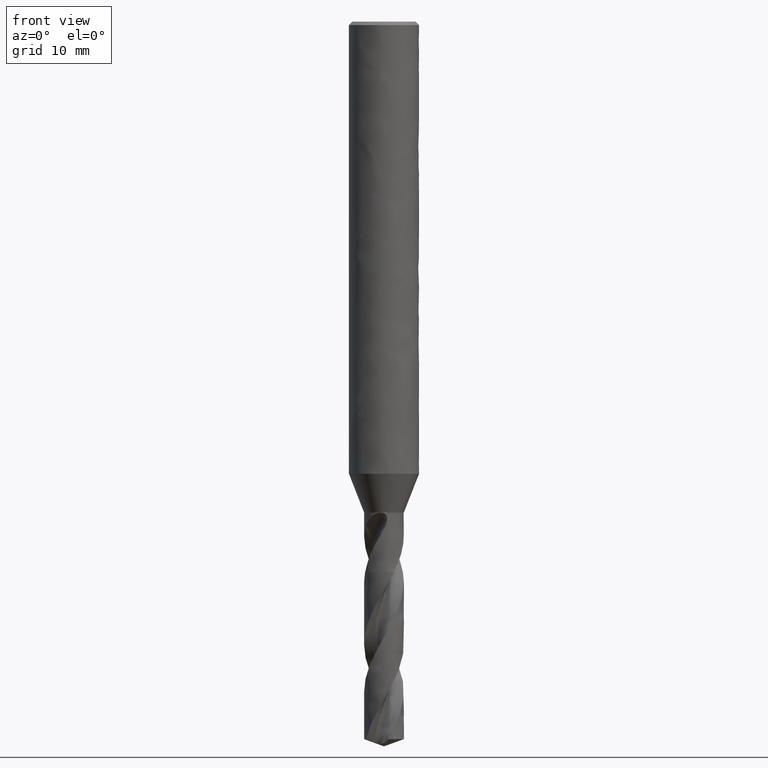
[diagram: clean part render]
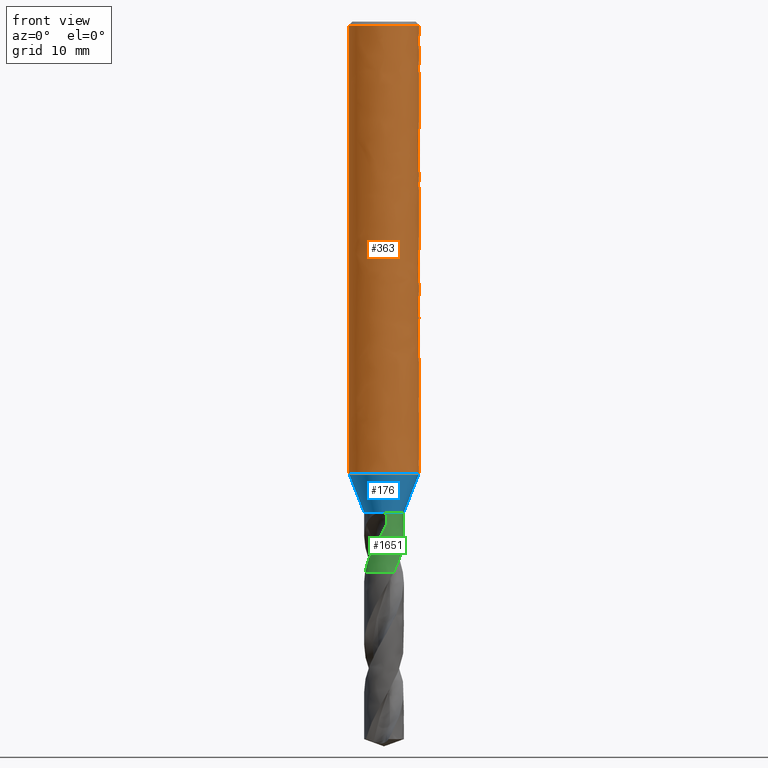
[diagram: same view with three faces highlighted in distinct colors, each labeled with its STEP entity id]
A machine part, front view with three faces highlighted in distinct colors.
Their STEP definitions:

[orange] entity #363 — the highlighted face is a freeform B-spline surface patch.
#252 = VERTEX_POINT('', #253);
#253 = CARTESIAN_POINT('', (-3., 2.55198023240321E-15, -38.677));
#259 = EDGE_CURVE('', #252, #252, #260, .T.);
#260 = CIRCLE('', #261, 3.);
#261 = AXIS2_PLACEMENT_3D('', #262, #263, #264);
#262 = CARTESIAN_POINT('', (1.45015522785032E-31, 2.36828321253111E-15, -38.677));
#263 = DIRECTION('', (3.74939945665464E-33, 6.12323399573677E-17, -1.));
#264 = DIRECTION('', (-1., 6.12323399573677E-17, 0.));
#312 = VERTEX_POINT('', #313);
#313 = CARTESIAN_POINT('', (-3., 2.02066721859313E-16, -0.299999999999997));
#329 = EDGE_CURVE('', #312, #312, #330, .T.);
#330 = CIRCLE('', #331, 3.);
#331 = AXIS2_PLACEMENT_3D('', #332, #333, #334);
#332 = CARTESIAN_POINT('', (1.12481983699637E-33, 1.836970198721E-17, -0.299999999999997));
#333 = DIRECTION('', (3.74939945665464E-33, 6.12323399573677E-17, -1.));
#334 = DIRECTION('', (-1., 6.12323399573677E-17, 0.));
#363 = ADVANCED_FACE('', (#364, #375), #546, .T.);
#364 = FACE_OUTER_BOUND('', #365, .T.);
#365 = EDGE_LOOP('', (#366, #372, #373, #374));
#366 = ORIENTED_EDGE('', *, *, #367, .T.);
#367 = EDGE_CURVE('', #252, #312, #368, .T.);
#368 = LINE('', #369, #370);
#369 = CARTESIAN_POINT('', (-3., 2.55198023240321E-15, -38.677));
#370 = VECTOR('', #371, 38.377);
#371 = DIRECTION('', (0., -2.3499135105439E-15, 38.377));
#372 = ORIENTED_EDGE('', *, *, #329, .T.);
#373 = ORIENTED_EDGE('', *, *, #367, .F.);
#374 = ORIENTED_EDGE('', *, *, #259, .F.);
#375 = FACE_BOUND('', #376, .T.);
#376 = EDGE_LOOP('', (#377, #457, #465, #540));
#377 = ORIENTED_EDGE('', *, *, #378, .F.);
#378 = EDGE_CURVE('', #379, #381, #383, .T.);
#379 = VERTEX_POINT('', #380);
#380 = CARTESIAN_POINT('', (-2.14242852856285, 2.1, -15.9));
#381 = VERTEX_POINT('', #382);
#382 = CARTESIAN_POINT('', (2.14242852856286, 2.1, -15.9));
#383 = B_SPLINE_CURVE_WITH_KNOTS('', 3, (#384, #385, #386, #387, #388, #389, #390, #391, #392, #393, #394, #395, #396, #397, #398, #399, #400, #401, #402, #403, #404, #405, #406, #407, #408, #409, #410, #411, #412, #413, #414, #415, #416, #417, #418, #419, #420, #421, #422, #423, #424, #425, #426, #427, #428, #429, #430, #431, #432, #433, #434, #435, #436, #437, #438, #439, #440, #441, #442, #443, #444, #445, #446, #447, #448, #449, #450, #451, #452, #453, #454, #455, #456), .UNSPECIFIED., .F., .U., (4, 3, 3, 3, 3, 3, 3, 3, 3, 3, 3, 3, 3, 3, 3, 3, 3, 3, 3, 3, 3, 3, 3, 3, 4), (0., 0.226532141220094, 0.522486989651003, 0.818712617000357, 1.01613164123477, 1.21365653787484, 1.41130126070876, 1.60907935009336, 1.8070024900134, 2.00507870652317, 2.20331049885992, 2.40169339368014, 2.59896230886552, 2.79623122405091, 2.99461411887113, 3.19284591120788, 3.39092212771765, 3.5888452676377, 3.78662335702229, 3.98426807985621, 4.18179297649628, 4.37921200073069, 4.67543762808004, 4.97139247651095, 5.19792461773105), .UNSPECIFIED.);
#384 = CARTESIAN_POINT('', (-2.14242852856285, 2.1, -15.9));
#385 = CARTESIAN_POINT('', (-2.09966946167759, 2.14362297369034, -15.8556089394693));
#386 = CARTESIAN_POINT('', (-2.05511554936736, 2.1864112283916, -15.8120672951529));
#387 = CARTESIAN_POINT('', (-2.0087677833036, 2.22819478339795, -15.7695480406738));
#388 = CARTESIAN_POINT('', (-1.94821634893922, 2.28278326528932, -15.71399839793));
#389 = CARTESIAN_POINT('', (-1.88451279376245, 2.33573606973674, -15.6601132326456));
#390 = CARTESIAN_POINT('', (-1.81770907332824, 2.38661553768947, -15.6083379099064));
#391 = CARTESIAN_POINT('', (-1.75084423195188, 2.43754155695695, -15.5565152162052));
#392 = CARTESIAN_POINT('', (-1.68074368663281, 2.48648668451198, -15.5067082925553));
#393 = CARTESIAN_POINT('', (-1.60754910566601, 2.53294016369761, -15.4594368887067));
#394 = CARTESIAN_POINT('', (-1.55876871187291, 2.56389899941746, -15.4279329486004));
#395 = CARTESIAN_POINT('', (-1.5085561938224, 2.59378846644903, -15.3975172059771));
#396 = CARTESIAN_POINT('', (-1.45698599487322, 2.6224400490275, -15.3683611437249));
#397 = CARTESIAN_POINT('', (-1.40538813971894, 2.65110699695379, -15.3391894455812));
#398 = CARTESIAN_POINT('', (-1.35237136818211, 2.67856731294511, -15.311245625015));
#399 = CARTESIAN_POINT('', (-1.29804490816719, 2.70464034880449, -15.2847135109673));
#400 = CARTESIAN_POINT('', (-1.24368549163368, 2.7307292015695, -15.2581653015195));
#401 = CARTESIAN_POINT('', (-1.18794354651529, 2.75546251726231, -15.2329964966177));
#402 = CARTESIAN_POINT('', (-1.13097137564117, 2.77865142604832, -15.2093992916021));
#403 = CARTESIAN_POINT('', (-1.07396076113039, 2.80185598222798, -15.1857861636831));
#404 = CARTESIAN_POINT('', (-1.01563414958426, 2.82354738172838, -15.1637128351876));
#405 = CARTESIAN_POINT('', (-0.95619479969747, 2.84353503671602, -15.143373249704));
#406 = CARTESIAN_POINT('', (-0.89671185696602, 2.86353735065839, -15.1230187471597));
#407 = CARTESIAN_POINT('', (-0.836016614422423, 2.88186535336629, -15.1043680361057));
#408 = CARTESIAN_POINT('', (-0.774369168024391, 2.89833614192924, -15.087607239896));
#409 = CARTESIAN_POINT('', (-0.712674042608822, 2.91481966923584, -15.0708334806465));
#410 = CARTESIAN_POINT('', (-0.649913305064561, 2.92947198918526, -15.0559231715418));
#411 = CARTESIAN_POINT('', (-0.586405693294024, 2.94212990244693, -15.0430423854271));
#412 = CARTESIAN_POINT('', (-0.522848200475703, 2.95479775766609, -15.030151482303));
#413 = CARTESIAN_POINT('', (-0.458417641638557, 2.96549204170255, -15.0192688998049));
#414 = CARTESIAN_POINT('', (-0.393487032405311, 2.97408270821927, -15.010526974047));
#415 = CARTESIAN_POINT('', (-0.32850692971699, 2.98267992298454, -15.0017783847429));
#416 = CARTESIAN_POINT('', (-0.262890170542842, 2.98918754384691, -14.9951561816426));
#417 = CARTESIAN_POINT('', (-0.197052250671389, 2.99352140638837, -14.9907460110803));
#418 = CARTESIAN_POINT('', (-0.131584030526332, 2.99783093298788, -14.9863606049525));
#419 = CARTESIAN_POINT('', (-0.0657563050617958, 3., -14.9841533463251));
#420 = CARTESIAN_POINT('', (9.18485099360515E-17, 3., -14.9841533463251));
#421 = CARTESIAN_POINT('', (0.0657563050617961, 3., -14.9841533463251));
#422 = CARTESIAN_POINT('', (0.131584030526332, 2.99783093298788, -14.9863606049525));
#423 = CARTESIAN_POINT('', (0.197052250671389, 2.99352140638837, -14.9907460110803));
#424 = CARTESIAN_POINT('', (0.262890170542842, 2.98918754384691, -14.9951561816426));
#425 = CARTESIAN_POINT('', (0.32850692971699, 2.98267992298454, -15.0017783847429));
#426 = CARTESIAN_POINT('', (0.393487032405312, 2.97408270821927, -15.010526974047));
#427 = CARTESIAN_POINT('', (0.458417641638557, 2.96549204170255, -15.0192688998049));
#428 = CARTESIAN_POINT('', (0.522848200475705, 2.95479775766609, -15.030151482303));
#429 = CARTESIAN_POINT('', (0.586405693294026, 2.94212990244693, -15.0430423854271));
#430 = CARTESIAN_POINT('', (0.649913305064563, 2.92947198918526, -15.0559231715418));
#431 = CARTESIAN_POINT('', (0.712674042608822, 2.91481966923584, -15.0708334806465));
#432 = CARTESIAN_POINT('', (0.774369168024392, 2.89833614192924, -15.087607239896));
#433 = CARTESIAN_POINT('', (0.836016614422424, 2.88186535336629, -15.1043680361057));
#434 = CARTESIAN_POINT('', (0.896711856966022, 2.86353735065839, -15.1230187471597));
#435 = CARTESIAN_POINT('', (0.956194799697472, 2.84353503671602, -15.143373249704));
#436 = CARTESIAN_POINT('', (1.01563414958426, 2.82354738172838, -15.1637128351876));
#437 = CARTESIAN_POINT('', (1.07396076113039, 2.80185598222798, -15.1857861636831));
#438 = CARTESIAN_POINT('', (1.13097137564117, 2.77865142604832, -15.2093992916021));
#439 = CARTESIAN_POINT('', (1.18794354651529, 2.75546251726231, -15.2329964966177));
#440 = CARTESIAN_POINT('', (1.24368549163368, 2.7307292015695, -15.2581653015195));
#441 = CARTESIAN_POINT('', (1.29804490816719, 2.7046403488045, -15.2847135109673));
#442 = CARTESIAN_POINT('', (1.35237136818211, 2.67856731294511, -15.311245625015));
#443 = CARTESIAN_POINT('', (1.40538813971894, 2.65110699695379, -15.3391894455811));
#444 = CARTESIAN_POINT('', (1.45698599487322, 2.6224400490275, -15.3683611437249));
#445 = CARTESIAN_POINT('', (1.5085561938224, 2.59378846644904, -15.3975172059771));
#446 = CARTESIAN_POINT('', (1.55876871187291, 2.56389899941746, -15.4279329486004));
#447 = CARTESIAN_POINT('', (1.60754910566601, 2.53294016369761, -15.4594368887067));
#448 = CARTESIAN_POINT('', (1.6807436866328, 2.48648668451198, -15.5067082925553));
#449 = CARTESIAN_POINT('', (1.75084423195188, 2.43754155695695, -15.5565152162052));
#450 = CARTESIAN_POINT('', (1.81770907332823, 2.38661553768947, -15.6083379099064));
#451 = CARTESIAN_POINT('', (1.88451279376245, 2.33573606973674, -15.6601132326456));
#452 = CARTESIAN_POINT('', (1.94821634893922, 2.28278326528933, -15.71399839793));
#453 = CARTESIAN_POINT('', (2.0087677833036, 2.22819478339795, -15.7695480406738));
#454 = CARTESIAN_POINT('', (2.05511554936736, 2.1864112283916, -15.8120672951529));
#455 = CARTESIAN_POINT('', (2.09966946167759, 2.14362297369034, -15.8556089394693));
#456 = CARTESIAN_POINT('', (2.14242852856286, 2.1, -15.9));
#457 = ORIENTED_EDGE('', *, *, #458, .T.);
#458 = EDGE_CURVE('', #379, #459, #461, .T.);
#459 = VERTEX_POINT('', #460);
#460 = CARTESIAN_POINT('', (-2.14242852856285, 2.1, -20.1));
#461 = LINE('', #462, #463);
#462 = CARTESIAN_POINT('', (-2.14242852856285, 2.1, -15.9));
#463 = VECTOR('', #464, 4.2);
#464 = DIRECTION('', (0., 0., -4.2));
#465 = ORIENTED_EDGE('', *, *, #466, .T.);
#466 = EDGE_CURVE('', #459, #467, #469, .T.);
#467 = VERTEX_POINT('', #468);
#468 = CARTESIAN_POINT('', (2.14242852856286, 2.1, -20.1));
#469 = B_SPLINE_CURVE_WITH_KNOTS('', 3, (#470, #471, #472, #473, #474, #475, #476, #477, #478, #479, #480, #481, #482, #483, #484, #485, #486, #487, #488, #489, #490, #491, #492, #493, #494, #495, #496, #497, #498, #499, #500, #501, #502, #503, #504, #505, #506, #507, #508, #509, #510, #511, #512, #513, #514, #515, #516, #517, #518, #519, #520, #521, #522, #523, #524, #525, #526, #527, #528, #529, #530, #531, #532, #533, #534, #535, #536, #537, #538, #539), .UNSPECIFIED., .F., .U., (4, 3, 3, 3, 3, 3, 3, 3, 3, 3, 3, 3, 3, 3, 3, 3, 3, 3, 3, 3, 3, 3, 3, 4), (0., 0.295660747419769, 0.591176839852674, 0.886518626925894, 1.18164841836715, 1.47652016794506, 1.67307726230278, 1.86952243409268, 2.06584587187348, 2.26204020012183, 2.39294997035299, 2.5987955185311, 2.79606443371649, 2.99444732853671, 3.19267912087346, 3.39075533738322, 3.58867847730327, 3.78645656668787, 3.98410128952179, 4.18162618616186, 4.37904521039627, 4.67527083774562, 4.97122568617653, 5.19775782739662), .UNSPECIFIED.);
#470 = CARTESIAN_POINT('', (-2.14242852856285, 2.1, -20.1));
#471 = CARTESIAN_POINT('', (-2.08662109388193, 2.15693497150777, -20.157937447925));
#472 = CARTESIAN_POINT('', (-2.02774367313634, 2.21245994000831, -20.2144400663657));
#473 = CARTESIAN_POINT('', (-1.96580397010841, 2.26618947820047, -20.269115641651));
#474 = CARTESIAN_POINT('', (-1.90389457170158, 2.31989272867704, -20.3237644663626));
#475 = CARTESIAN_POINT('', (-1.8388216153995, 2.37189080900499, -20.3766780973248));
#476 = CARTESIAN_POINT('', (-1.77065397516674, 2.42173171516323, -20.4273965719039));
#477 = CARTESIAN_POINT('', (-1.70252654250763, 2.47154322347377, -20.4780851310158));
#478 = CARTESIAN_POINT('', (-1.63117078258686, 2.51929762113425, -20.5266803591222));
#479 = CARTESIAN_POINT('', (-1.55675381487312, 2.56447217958794, -20.572650323779));
#480 = CARTESIAN_POINT('', (-1.48239026348173, 2.60961431185107, -20.6185872913044));
#481 = CARTESIAN_POINT('', (-1.40478985624159, 2.6522855246488, -20.6620098329141));
#482 = CARTESIAN_POINT('', (-1.32426732289553, 2.69189822569709, -20.7023200103564));
#483 = CARTESIAN_POINT('', (-1.24381519309784, 2.73147629203384, -20.7425949432603));
#484 = CARTESIAN_POINT('', (-1.16021288035591, 2.76811040114363, -20.7798740835253));
#485 = CARTESIAN_POINT('', (-1.07398043712975, 2.80117225829876, -20.8135180737918));
#486 = CARTESIAN_POINT('', (-1.01649918128153, 2.82321079737816, -20.8359446540893));
#487 = CARTESIAN_POINT('', (-0.957748596561569, 2.84370285567261, -20.856797524107));
#488 = CARTESIAN_POINT('', (-0.897945836518629, 2.86246279882885, -20.8758877809545));
#489 = CARTESIAN_POINT('', (-0.838177129067325, 2.88121205979111, -20.8949671675225));
#490 = CARTESIAN_POINT('', (-0.777257254947387, 2.89826163823775, -20.9123169445968));
#491 = CARTESIAN_POINT('', (-0.715458762567489, 2.91343761887321, -20.9277601346871));
#492 = CARTESIAN_POINT('', (-0.653698565749475, 2.92860419519017, -20.9431937548733));
#493 = CARTESIAN_POINT('', (-0.590947680355502, 2.94192632660259, -20.9567504542887));
#494 = CARTESIAN_POINT('', (-0.5275334952627, 2.9532538684265, -20.9682774445929));
#495 = CARTESIAN_POINT('', (-0.464161013676521, 2.96457396084119, -20.9797968543232));
#496 = CARTESIAN_POINT('', (-0.400001379736572, 2.97392352783086, -20.989311042813));
#497 = CARTESIAN_POINT('', (-0.335429955765133, 2.98118881400953, -20.9967042517405));
#498 = CARTESIAN_POINT('', (-0.292344967778633, 2.9860365430586, -21.0016373366599));
#499 = CARTESIAN_POINT('', (-0.249027925527355, 2.98996321515988, -21.0056331472199));
#500 = CARTESIAN_POINT('', (-0.20559941433194, 2.99294652154468, -21.0086689818526));
#501 = CARTESIAN_POINT('', (-0.13731141964832, 2.99763754145158, -21.0134425983904));
#502 = CARTESIAN_POINT('', (-0.0686151827260334, 3., -21.0158466536749));
#503 = CARTESIAN_POINT('', (3.42251758381152E-15, 3., -21.0158466536749));
#504 = CARTESIAN_POINT('', (0.0657563050618005, 3., -21.0158466536749));
#505 = CARTESIAN_POINT('', (0.131584030526337, 2.99783093298788, -21.0136393950475));
#506 = CARTESIAN_POINT('', (0.197052250671396, 2.99352140638837, -21.0092539889197));
#507 = CARTESIAN_POINT('', (0.262890170542849, 2.98918754384691, -21.0048438183574));
#508 = CARTESIAN_POINT('', (0.328506929716997, 2.98267992298454, -20.9982216152571));
#509 = CARTESIAN_POINT('', (0.393487032405319, 2.97408270821927, -20.989473025953));
#510 = CARTESIAN_POINT('', (0.458417641638564, 2.96549204170255, -20.9807311001951));
#511 = CARTESIAN_POINT('', (0.522848200475711, 2.95479775766609, -20.969848517697));
#512 = CARTESIAN_POINT('', (0.586405693294031, 2.94212990244693, -20.9569576145729));
#513 = CARTESIAN_POINT('', (0.649913305064567, 2.92947198918526, -20.9440768284582));
#514 = CARTESIAN_POINT('', (0.712674042608828, 2.91481966923584, -20.9291665193535));
#515 = CARTESIAN_POINT('', (0.774369168024397, 2.89833614192924, -20.912392760104));
#516 = CARTESIAN_POINT('', (0.836016614422428, 2.88186535336629, -20.8956319638943));
#517 = CARTESIAN_POINT('', (0.896711856966026, 2.86353735065839, -20.8769812528403));
#518 = CARTESIAN_POINT('', (0.956194799697476, 2.84353503671602, -20.856626750296));
#519 = CARTESIAN_POINT('', (1.01563414958426, 2.82354738172838, -20.8362871648124));
#520 = CARTESIAN_POINT('', (1.07396076113039, 2.80185598222798, -20.8142138363169));
#521 = CARTESIAN_POINT('', (1.13097137564118, 2.77865142604832, -20.7906007083979));
#522 = CARTESIAN_POINT('', (1.1879435465153, 2.75546251726231, -20.7670035033823));
#523 = CARTESIAN_POINT('', (1.24368549163369, 2.7307292015695, -20.7418346984805));
#524 = CARTESIAN_POINT('', (1.2980449081672, 2.70464034880449, -20.7152864890327));
#525 = CARTESIAN_POINT('', (1.35237136818211, 2.67856731294511, -20.688754374985));
#526 = CARTESIAN_POINT('', (1.40538813971895, 2.65110699695378, -20.6608105544188));
#527 = CARTESIAN_POINT('', (1.45698599487323, 2.6224400490275, -20.6316388562751));
#528 = CARTESIAN_POINT('', (1.50855619382241, 2.59378846644903, -20.6024827940229));
#529 = CARTESIAN_POINT('', (1.55876871187291, 2.56389899941746, -20.5720670513996));
#530 = CARTESIAN_POINT('', (1.60754910566601, 2.53294016369761, -20.5405631112933));
#531 = CARTESIAN_POINT('', (1.68074368663281, 2.48648668451198, -20.4932917074447));
#532 = CARTESIAN_POINT('', (1.75084423195189, 2.43754155695695, -20.4434847837948));
#533 = CARTESIAN_POINT('', (1.81770907332824, 2.38661553768947, -20.3916620900936));
#534 = CARTESIAN_POINT('', (1.88451279376245, 2.33573606973674, -20.3398867673544));
#535 = CARTESIAN_POINT('', (1.94821634893923, 2.28278326528932, -20.28600160207));
#536 = CARTESIAN_POINT('', (2.0087677833036, 2.22819478339795, -20.2304519593262));
#537 = CARTESIAN_POINT('', (2.05511554936736, 2.1864112283916, -20.1879327048471));
#538 = CARTESIAN_POINT('', (2.09966946167759, 2.14362297369034, -20.1443910605307));
#539 = CARTESIAN_POINT('', (2.14242852856286, 2.1, -20.1));
#540 = ORIENTED_EDGE('', *, *, #541, .F.);
#541 = EDGE_CURVE('', #381, #467, #542, .T.);
#542 = LINE('', #543, #544);
#543 = CARTESIAN_POINT('', (2.14242852856286, 2.1, -15.9));
#544 = VECTOR('', #545, 4.2);
#545 = DIRECTION('', (0., 4.44089209850063E-16, -4.2));
#546 = (
   BOUNDED_SURFACE ()
   B_SPLINE_SURFACE (1, 2, ((#547, #548, #549, #550, #551, #552, #553, #554, #555), (#556, #557, #558, #559, #560, #561, #562, #563, #564)), .UNSPECIFIED., .F., .T., .U.)
   B_SPLINE_SURFACE_WITH_KNOTS ((2, 2), (3, 2, 2, 2, 3), (0., 1.), (0., 4.71238898038469, 9.42477796076938, 14.1371669411541, 18.8495559215388), .UNSPECIFIED.)
   GEOMETRIC_REPRESENTATION_ITEM ()
   RATIONAL_B_SPLINE_SURFACE (((1., 0.707106781186548, 1., 0.707106781186548, 1., 0.707106781186548, 1., 0.707106781186548, 1.), (1., 0.707106781186548, 1., 0.707106781186548, 1., 0.707106781186548, 1., 0.707106781186548, 1.)))
   REPRESENTATION_ITEM ('')
   SURFACE ()
);
#547 = CARTESIAN_POINT('', (-3., 2.55198023240321E-15, -38.677));
#548 = CARTESIAN_POINT('', (-3., 3., -38.677));
#549 = CARTESIAN_POINT('', (1.23259516440783E-31, 3., -38.677));
#550 = CARTESIAN_POINT('', (3., 3., -38.677));
#551 = CARTESIAN_POINT('', (3., 2.55198023240321E-15, -38.677));
#552 = CARTESIAN_POINT('', (3., -3., -38.677));
#553 = CARTESIAN_POINT('', (3.67394039744206E-16, -3., -38.677));
#554 = CARTESIAN_POINT('', (-3., -3., -38.677));
#555 = CARTESIAN_POINT('', (-3., 2.55198023240321E-15, -38.677));
#556 = CARTESIAN_POINT('', (-3., 2.02066721859313E-16, -0.299999999999997));
#557 = CARTESIAN_POINT('', (-3., 3., -0.299999999999997));
#558 = CARTESIAN_POINT('', (0., 3., -0.299999999999997));
#559 = CARTESIAN_POINT('', (3., 3., -0.299999999999997));
#560 = CARTESIAN_POINT('', (3., 2.02066721859313E-16, -0.299999999999997));
#561 = CARTESIAN_POINT('', (3., -3., -0.299999999999997));
#562 = CARTESIAN_POINT('', (3.67394039744206E-16, -3., -0.299999999999997));
#563 = CARTESIAN_POINT('', (-3., -3., -0.299999999999997));
#564 = CARTESIAN_POINT('', (-3., 2.02066721859313E-16, -0.299999999999997));

[blue] entity #176 — the highlighted face is a freeform B-spline surface patch.
#75 = VERTEX_POINT('', #76);
#76 = CARTESIAN_POINT('', (-0.392272443234621, -1.65412282805079, -42.));
#116 = EDGE_CURVE('', #75, #117, #119, .T.);
#117 = VERTEX_POINT('', #118);
#118 = CARTESIAN_POINT('', (-1.7, 2.67585325613697E-15, -42.));
#119 = CIRCLE('', #120, 1.7);
#120 = AXIS2_PLACEMENT_3D('', #121, #122, #123);
#121 = CARTESIAN_POINT('', (1.57474777179495E-31, 2.57175827820944E-15, -42.));
#122 = DIRECTION('', (3.74939945665464E-33, 6.12323399573677E-17, -1.));
#123 = DIRECTION('', (-1., 6.12323399573677E-17, 0.));
#176 = ADVANCED_FACE('', (#177), #288, .T.);
#177 = FACE_OUTER_BOUND('', #178, .T.);
#178 = EDGE_LOOP('', (#179, #196, #205, #220, #228, #243, #250, #258, #265, #266, #267, #282));
#179 = ORIENTED_EDGE('', *, *, #180, .T.);
#180 = EDGE_CURVE('', #181, #183, #185, .T.);
#181 = VERTEX_POINT('', #182);
#182 = CARTESIAN_POINT('', (-0.261962247291846, -1.68761354213955, -41.98));
#183 = VERTEX_POINT('', #184);
#184 = CARTESIAN_POINT('', (-0.151848913242795, -1.69320462660216, -42.));
#185 = B_SPLINE_CURVE_WITH_KNOTS('', 3, (#186, #187, #188, #189, #190, #191, #192, #193, #194, #195), .UNSPECIFIED., .F., .U., (4, 3, 3, 4), (0., 0.058475650228515, 0.0973335052577115, 0.112806551813066), .UNSPECIFIED.);
#186 = CARTESIAN_POINT('', (-0.261962247292319, -1.68761354213948, -41.98));
#187 = CARTESIAN_POINT('', (-0.242698824047986, -1.69058888008473, -41.9800375216065));
#188 = CARTESIAN_POINT('', (-0.223170898270048, -1.69265298339423, -41.9816094562211));
#189 = CARTESIAN_POINT('', (-0.204016107669751, -1.69358661078151, -41.9850959811113));
#190 = CARTESIAN_POINT('', (-0.191287492026277, -1.69420701872096, -41.9874128237323));
#191 = CARTESIAN_POINT('', (-0.17864402389223, -1.69433284374674, -41.9905907794402));
#192 = CARTESIAN_POINT('', (-0.166360048866219, -1.6939321773754, -41.994679024291));
#193 = CARTESIAN_POINT('', (-0.161468617846172, -1.69377263358657, -41.9963069474705));
#194 = CARTESIAN_POINT('', (-0.156625246024829, -1.69353001754696, -41.9980810285539));
#195 = CARTESIAN_POINT('', (-0.151848913242804, -1.69320462660216, -42.));
#196 = ORIENTED_EDGE('', *, *, #197, .F.);
#197 = EDGE_CURVE('', #198, #183, #200, .T.);
#198 = VERTEX_POINT('', #199);
#199 = CARTESIAN_POINT('', (0.392272443234619, 1.65412282805079, -42.));
#200 = CIRCLE('', #201, 1.7);
#201 = AXIS2_PLACEMENT_3D('', #202, #203, #204);
#202 = CARTESIAN_POINT('', (1.57474777179495E-31, 2.57175827820944E-15, -42.));
#203 = DIRECTION('', (3.74939945665464E-33, 6.12323399573677E-17, -1.));
#204 = DIRECTION('', (-1., 6.12323399573677E-17, 0.));
#205 = ORIENTED_EDGE('', *, *, #206, .F.);
#206 = EDGE_CURVE('', #207, #198, #209, .T.);
#207 = VERTEX_POINT('', #208);
#208 = CARTESIAN_POINT('', (0.263392293017799, 1.68739094065301, -41.98));
#209 = B_SPLINE_CURVE_WITH_KNOTS('', 3, (#210, #211, #212, #213, #214, #215, #216, #217, #218, #219), .UNSPECIFIED., .F., .U., (4, 3, 3, 4), (0., 0.0587651688292317, 0.117285349436854, 0.135078699596834), .UNSPECIFIED.);
#210 = CARTESIAN_POINT('', (0.263392293032978, 1.68739094065064, -41.98));
#211 = CARTESIAN_POINT('', (0.282744005527181, 1.68435534919864, -41.9800376242118));
#212 = CARTESIAN_POINT('', (0.30199513187411, 1.68038723104265, -41.9815993079071));
#213 = CARTESIAN_POINT('', (0.32082342876671, 1.67570674566242, -41.9842999189921));
#214 = CARTESIAN_POINT('', (0.339573231696585, 1.67104577292569, -41.9869892714027));
#215 = CARTESIAN_POINT('', (0.358010064490328, 1.66565548537919, -41.9908194717857));
#216 = CARTESIAN_POINT('', (0.375988379671589, 1.65970579484682, -41.9954985485068));
#217 = CARTESIAN_POINT('', (0.381454775263421, 1.65789676203306, -41.996921244911));
#218 = CARTESIAN_POINT('', (0.386883584790141, 1.65603446567245, -41.9984239315323));
#219 = CARTESIAN_POINT('', (0.39227244323462, 1.65412282805079, -42.));
#220 = ORIENTED_EDGE('', *, *, #221, .F.);
#221 = EDGE_CURVE('', #222, #207, #224, .T.);
#222 = VERTEX_POINT('', #223);
#223 = CARTESIAN_POINT('', (0.261962247291845, 1.68761354213956, -41.98));
#224 = LINE('', #225, #226);
#225 = CARTESIAN_POINT('', (0.261962247291845, 1.68761354213956, -41.98));
#226 = VECTOR('', #227, 0.00144726714884773);
#227 = DIRECTION('', (0.00143004572595412, -0.000222601486549845, 0.));
#228 = ORIENTED_EDGE('', *, *, #229, .T.);
#229 = EDGE_CURVE('', #222, #230, #232, .T.);
#230 = VERTEX_POINT('', #231);
#231 = CARTESIAN_POINT('', (0.151848913242805, 1.69320462660217, -42.));
#232 = B_SPLINE_CURVE_WITH_KNOTS('', 3, (#233, #234, #235, #236, #237, #238, #239, #240, #241, #242), .UNSPECIFIED., .F., .U., (4, 3, 3, 4), (0., 0.0584756502285145, 0.0973335052577111, 0.112806551813244), .UNSPECIFIED.);
#233 = CARTESIAN_POINT('', (0.26196224729249, 1.68761354213946, -41.98));
#234 = CARTESIAN_POINT('', (0.242698824048158, 1.69058888008472, -41.9800375216065));
#235 = CARTESIAN_POINT('', (0.223170898270221, 1.69265298339422, -41.9816094562211));
#236 = CARTESIAN_POINT('', (0.204016107669921, 1.69358661078151, -41.9850959811113));
#237 = CARTESIAN_POINT('', (0.191287492026447, 1.69420701872097, -41.9874128237323));
#238 = CARTESIAN_POINT('', (0.178644023892398, 1.69433284374675, -41.9905907794402));
#239 = CARTESIAN_POINT('', (0.166360048866383, 1.69393217737541, -41.994679024291));
#240 = CARTESIAN_POINT('', (0.161468617846279, 1.69377263358659, -41.9963069474705));
#241 = CARTESIAN_POINT('', (0.15662524602488, 1.69353001754697, -41.9980810285538));
#242 = CARTESIAN_POINT('', (0.1518489132428, 1.69320462660217, -42.));
#243 = ORIENTED_EDGE('', *, *, #244, .F.);
#244 = EDGE_CURVE('', #117, #230, #245, .T.);
#245 = CIRCLE('', #246, 1.7);
#246 = AXIS2_PLACEMENT_3D('', #247, #248, #249);
#247 = CARTESIAN_POINT('', (1.57474777179495E-31, 2.57175827820944E-15, -42.));
#248 = DIRECTION('', (3.74939945665464E-33, 6.12323399573677E-17, -1.));
#249 = DIRECTION('', (-1., 6.12323399573677E-17, 0.));
#250 = ORIENTED_EDGE('', *, *, #251, .F.);
#251 = EDGE_CURVE('', #252, #117, #254, .T.);
#252 = VERTEX_POINT('', #253);
#253 = CARTESIAN_POINT('', (-3., 2.55198023240321E-15, -38.677));
#254 = LINE('', #255, #256);
#255 = CARTESIAN_POINT('', (-3., 2.55198023240321E-15, -38.677));
#256 = VECTOR('', #257, 3.56823892137284);
#257 = DIRECTION('', (1.3, 1.23873023733755E-16, -3.323));
#258 = ORIENTED_EDGE('', *, *, #259, .T.);
#259 = EDGE_CURVE('', #252, #252, #260, .T.);
#260 = CIRCLE('', #261, 3.);
#261 = AXIS2_PLACEMENT_3D('', #262, #263, #264);
#262 = CARTESIAN_POINT('', (1.45015522785032E-31, 2.36828321253111E-15, -38.677));
#263 = DIRECTION('', (3.74939945665464E-33, 6.12323399573677E-17, -1.));
#264 = DIRECTION('', (-1., 6.12323399573677E-17, 0.));
#265 = ORIENTED_EDGE('', *, *, #251, .T.);
#266 = ORIENTED_EDGE('', *, *, #116, .F.);
#267 = ORIENTED_EDGE('', *, *, #268, .F.);
#268 = EDGE_CURVE('', #269, #75, #271, .T.);
#269 = VERTEX_POINT('', #270);
#270 = CARTESIAN_POINT('', (-0.263392293017798, -1.687390940653, -41.98));
#271 = B_SPLINE_CURVE_WITH_KNOTS('', 3, (#272, #273, #274, #275, #276, #277, #278, #279, #280, #281), .UNSPECIFIED., .F., .U., (4, 3, 3, 4), (0., 0.0587651688292351, 0.117285349436859, 0.135078699597276), .UNSPECIFIED.);
#272 = CARTESIAN_POINT('', (-0.26339229303254, -1.68739094065071, -41.98));
#273 = CARTESIAN_POINT('', (-0.282744005526746, -1.68435534919871, -41.9800376242117));
#274 = CARTESIAN_POINT('', (-0.301995131873681, -1.68038723104274, -41.981599307907));
#275 = CARTESIAN_POINT('', (-0.320823428766288, -1.67570674566252, -41.9842999189921));
#276 = CARTESIAN_POINT('', (-0.339573231696169, -1.6710457729258, -41.9869892714026));
#277 = CARTESIAN_POINT('', (-0.358010064489917, -1.66565548537931, -41.9908194717856));
#278 = CARTESIAN_POINT('', (-0.375988379671185, -1.65970579484694, -41.9954985485067));
#279 = CARTESIAN_POINT('', (-0.381454775263152, -1.65789676203315, -41.996921244911));
#280 = CARTESIAN_POINT('', (-0.386883584790008, -1.65603446567249, -41.9984239315322));
#281 = CARTESIAN_POINT('', (-0.392272443234618, -1.65412282805079, -42.));
#282 = ORIENTED_EDGE('', *, *, #283, .F.);
#283 = EDGE_CURVE('', #181, #269, #284, .T.);
#284 = LINE('', #285, #286);
#285 = CARTESIAN_POINT('', (-0.261962247291846, -1.68761354213955, -41.98));
#286 = VECTOR('', #287, 0.00144726714884535);
#287 = DIRECTION('', (-0.00143004572595185, 0.000222601486548957, 0.));
#288 = (
   BOUNDED_SURFACE ()
   B_SPLINE_SURFACE (2, 1, ((#289, #290), (#291, #292), (#293, #294), (#295, #296), (#297, #298), (#299, #300), (#301, #302), (#303, #304), (#305, #306)), .UNSPECIFIED., .T., .F., .U.)
   B_SPLINE_SURFACE_WITH_KNOTS ((3, 2, 2, 2, 3), (2, 2), (0., 0.25, 0.5, 0.75, 1.), (0., 1.), .UNSPECIFIED.)
   GEOMETRIC_REPRESENTATION_ITEM ()
   RATIONAL_B_SPLINE_SURFACE (((1., 1.), (0.707106781186548, 0.707106781186548), (1., 1.), (0.707106781186548, 0.707106781186548), (1., 1.), (0.707106781186548, 0.707106781186548), (1., 1.), (0.707106781186548, 0.707106781186548), (1., 1.)))
   REPRESENTATION_ITEM ('')
   SURFACE ()
);
#289 = CARTESIAN_POINT('', (-3., 2.55198023240321E-15, -38.677));
#290 = CARTESIAN_POINT('', (-1.7, 2.67585325613697E-15, -42.));
#291 = CARTESIAN_POINT('', (-3., 3., -38.677));
#292 = CARTESIAN_POINT('', (-1.7, 1.7, -42.));
#293 = CARTESIAN_POINT('', (1.23259516440783E-31, 3., -38.677));
#294 = CARTESIAN_POINT('', (1.60237371373018E-31, 1.7, -42.));
#295 = CARTESIAN_POINT('', (3., 3., -38.677));
#296 = CARTESIAN_POINT('', (1.7, 1.7, -42.));
#297 = CARTESIAN_POINT('', (3., 2.55198023240321E-15, -38.677));
#298 = CARTESIAN_POINT('', (1.7, 2.67585325613697E-15, -42.));
#299 = CARTESIAN_POINT('', (3., -3., -38.677));
#300 = CARTESIAN_POINT('', (1.7, -1.7, -42.));
#301 = CARTESIAN_POINT('', (3.67394039744206E-16, -3., -38.677));
#302 = CARTESIAN_POINT('', (2.0818995585505E-16, -1.7, -42.));
#303 = CARTESIAN_POINT('', (-3., -3., -38.677));
#304 = CARTESIAN_POINT('', (-1.7, -1.7, -42.));
#305 = CARTESIAN_POINT('', (-3., 2.55198023240321E-15, -38.677));
#306 = CARTESIAN_POINT('', (-1.7, 2.67585325613697E-15, -42.));

[green] entity #1651 — the highlighted face is a freeform B-spline surface patch.
#183 = VERTEX_POINT('', #184);
#184 = CARTESIAN_POINT('', (-0.151848913242795, -1.69320462660216, -42.));
#197 = EDGE_CURVE('', #198, #183, #200, .T.);
#198 = VERTEX_POINT('', #199);
#199 = CARTESIAN_POINT('', (0.392272443234619, 1.65412282805079, -42.));
#200 = CIRCLE('', #201, 1.7);
#201 = AXIS2_PLACEMENT_3D('', #202, #203, #204);
#202 = CARTESIAN_POINT('', (1.57474777179495E-31, 2.57175827820944E-15, -42.));
#203 = DIRECTION('', (3.74939945665464E-33, 6.12323399573677E-17, -1.));
#204 = DIRECTION('', (-1., 6.12323399573677E-17, 0.));
#612 = VERTEX_POINT('', #613);
#613 = CARTESIAN_POINT('', (0.833339279212305, -1.48173737407204, -47.1));
#622 = VERTEX_POINT('', #623);
#623 = CARTESIAN_POINT('', (1.52386717621396, 0.753544178703387, -42.999379720907));
#643 = EDGE_CURVE('', #622, #612, #644, .T.);
#644 = B_SPLINE_CURVE_WITH_KNOTS('', 3, (#645, #646, #647, #648, #649, #650, #651, #652, #653, #654, #655, #656, #657, #658, #659, #660, #661, #662, #663, #664, #665, #666, #667, #668, #669, #670, #671, #672, #673, #674, #675, #676, #677, #678, #679, #680, #681, #682, #683, #684, #685, #686, #687, #688, #689, #690, #691, #692, #693, #694, #695, #696, #697, #698, #699, #700, #701, #702, #703, #704, #705, #706, #707, #708, #709, #710, #711, #712, #713, #714, #715, #716, #717, #718, #719, #720, #721, #722, #723, #724, #725, #726), .UNSPECIFIED., .F., .U., (4, 3, 3, 3, 3, 3, 3, 3, 3, 3, 3, 3, 3, 3, 3, 3, 3, 3, 3, 3, 3, 3, 3, 3, 3, 3, 3, 4), (0., 0.195872725630061, 0.391798743501957, 0.587795533286003, 0.78387314195057, 0.980041747823989, 1.1763070297065, 1.26374392814216, 1.30264802300236, 1.49995918143484, 1.7962956273478, 1.88391966251445, 2.0813325361862, 2.21286381804922, 2.3443525429323, 2.47576850179241, 2.56336955079232, 2.65098420083084, 2.84814667634374, 2.97954220931949, 3.27518165411269, 3.57078559788506, 3.70215515420964, 3.89921256566197, 4.03058004968227, 4.32607914101631, 4.62152387017681, 4.85348510749988), .UNSPECIFIED.);
#645 = CARTESIAN_POINT('', (1.52386717621396, 0.753544178703387, -42.999379720907));
#646 = CARTESIAN_POINT('', (1.54253125774296, 0.715800431196549, -43.0492792632219));
#647 = CARTESIAN_POINT('', (1.55964092080669, 0.677667938432912, -43.0994911801706));
#648 = CARTESIAN_POINT('', (1.57520854540506, 0.639310596254186, -43.1499814376839));
#649 = CARTESIAN_POINT('', (1.5907804055784, 0.600942817968295, -43.2004854323779));
#650 = CARTESIAN_POINT('', (1.60481765614681, 0.56232981630043, -43.2512995822685));
#651 = CARTESIAN_POINT('', (1.61734659889369, 0.523631529844235, -43.3023945031404));
#652 = CARTESIAN_POINT('', (1.62988006731432, 0.484919264888609, -43.3535078803934));
#653 = CARTESIAN_POINT('', (1.6409122612095, 0.44609727984766, -43.4049278398957));
#654 = CARTESIAN_POINT('', (1.65048360531509, 0.407312986026831, -43.4566238024816));
#655 = CARTESIAN_POINT('', (1.6600588961451, 0.368512699580756, -43.5083410817933));
#656 = CARTESIAN_POINT('', (1.66817658855, 0.329731993438413, -43.5603629632291));
#657 = CARTESIAN_POINT('', (1.67488865656058, 0.291115077116753, -43.6126650408074));
#658 = CARTESIAN_POINT('', (1.68160383955945, 0.252480239158738, -43.6649913911372));
#659 = CARTESIAN_POINT('', (1.68691609631627, 0.213987517268868, -43.7176212300567));
#660 = CARTESIAN_POINT('', (1.69088907811443, 0.175767248124724, -43.7705288643619));
#661 = CARTESIAN_POINT('', (1.69486401788146, 0.137528143229207, -43.8234625726605));
#662 = CARTESIAN_POINT('', (1.69749991063532, 0.0995472476269504, -43.8767005347758));
#663 = CARTESIAN_POINT('', (1.6988709412145, 0.0619477610328557, -43.9302206772141));
#664 = CARTESIAN_POINT('', (1.69948174033472, 0.0451970527107959, -43.9540640957431));
#665 = CARTESIAN_POINT('', (1.69984179397461, 0.0285188962225834, -43.9779663584315));
#666 = CARTESIAN_POINT('', (1.69995819142892, 0.0119225581864888, -44.0019249879297));
#667 = CARTESIAN_POINT('', (1.70000998120744, 0.00453819848435248, -44.0125851189658));
#668 = CARTESIAN_POINT('', (1.70001354029017, -0.00283015848313178, -44.0232566949727));
#669 = CARTESIAN_POINT('', (1.69996950948283, -0.0101816908560647, -44.0339395259251));
#670 = CARTESIAN_POINT('', (1.69974619701066, -0.0474666957885775, -44.0881199858001));
#671 = CARTESIAN_POINT('', (1.69829768792029, -0.0843284635980481, -44.1426018930656));
#672 = CARTESIAN_POINT('', (1.69571291118051, -0.12065538883827, -44.1973688276644));
#673 = CARTESIAN_POINT('', (1.69183090289153, -0.175213843626915, -44.2796218481296));
#674 = CARTESIAN_POINT('', (1.68538165598837, -0.228598323447205, -44.3625782431166));
#675 = CARTESIAN_POINT('', (1.67670008525865, -0.280493893148531, -44.4461768945888));
#676 = CARTESIAN_POINT('', (1.67413302248452, -0.295838948700144, -44.4708962677118));
#677 = CARTESIAN_POINT('', (1.67137075553341, -0.311056309175698, -44.4956757656563));
#678 = CARTESIAN_POINT('', (1.66842210444505, -0.326140585329653, -44.5205127948353));
#679 = CARTESIAN_POINT('', (1.66177893075757, -0.360124757562159, -44.5764694657916));
#680 = CARTESIAN_POINT('', (1.65418587263793, -0.393449748982217, -44.632725516292));
#681 = CARTESIAN_POINT('', (1.6457479219288, -0.42604433744277, -44.6892639858008));
#682 = CARTESIAN_POINT('', (1.64012592548841, -0.447761300081906, -44.7269341601453));
#683 = CARTESIAN_POINT('', (1.63412806897553, -0.469156579356137, -44.7647371936759));
#684 = CARTESIAN_POINT('', (1.6277946765508, -0.490188219965952, -44.802682332746));
#685 = CARTESIAN_POINT('', (1.6214633332968, -0.511213055783062, -44.8406151946566));
#686 = CARTESIAN_POINT('', (1.61479926888038, -0.531868835680724, -44.8787001232221));
#687 = CARTESIAN_POINT('', (1.60782424503983, -0.552178591637241, -44.9169086889721));
#688 = CARTESIAN_POINT('', (1.6008530811861, -0.572477108149692, -44.9550961100546));
#689 = CARTESIAN_POINT('', (1.59357161617746, -0.59243253439053, -44.993411367663));
#690 = CARTESIAN_POINT('', (1.58596013917887, -0.612152298807894, -45.0317793534876));
#691 = CARTESIAN_POINT('', (1.58088637663664, -0.625297369345567, -45.0573552107534));
#692 = CARTESIAN_POINT('', (1.57566478393379, -0.638340263737693, -45.0829548292132));
#693 = CARTESIAN_POINT('', (1.57027625555493, -0.651331314493937, -45.1085449988651));
#694 = CARTESIAN_POINT('', (1.564886890547, -0.664324382255514, -45.1341391416759));
#695 = CARTESIAN_POINT('', (1.55932721946548, -0.677272254669197, -45.1597209797533));
#696 = CARTESIAN_POINT('', (1.55359894647465, -0.690166873671044, -45.1852912926298));
#697 = CARTESIAN_POINT('', (1.54070840268099, -0.71918410996751, -45.2428331099418));
#698 = CARTESIAN_POINT('', (1.52696458777359, -0.747929284170302, -45.3003280593694));
#699 = CARTESIAN_POINT('', (1.51238657995538, -0.776329075051856, -45.3577750821564));
#700 = CARTESIAN_POINT('', (1.50267131795121, -0.795255626108665, -45.3960596601794));
#701 = CARTESIAN_POINT('', (1.49258396776682, -0.81403254459136, -45.4343259300562));
#702 = CARTESIAN_POINT('', (1.48212618283797, -0.832647571392687, -45.4725675968174));
#703 = CARTESIAN_POINT('', (1.45859620689349, -0.874531310236157, -45.5586112002277));
#704 = CARTESIAN_POINT('', (1.43318128706603, -0.915608794691482, -45.6445570365401));
#705 = CARTESIAN_POINT('', (1.40594044777668, -0.955683764278514, -45.7303669574275));
#706 = CARTESIAN_POINT('', (1.37870287962594, -0.995753921576946, -45.8161665740749));
#707 = CARTESIAN_POINT('', (1.34962810958469, -1.0348369393824, -45.9018699224819));
#708 = CARTESIAN_POINT('', (1.31882150208218, -1.07271144565803, -45.9874593584544));
#709 = CARTESIAN_POINT('', (1.30513071599921, -1.08954328160022, -46.0254962198247));
#710 = CARTESIAN_POINT('', (1.29109646316888, -1.10613895706816, -46.0635162692487));
#711 = CARTESIAN_POINT('', (1.27672913697591, -1.122480605978, -46.1015173428734));
#712 = CARTESIAN_POINT('', (1.25517781117192, -1.14699346210031, -46.1585198433796));
#713 = CARTESIAN_POINT('', (1.23286931296008, -1.17094206292863, -46.2154865694359));
#714 = CARTESIAN_POINT('', (1.20986796329531, -1.19424432650595, -46.2724301138366));
#715 = CARTESIAN_POINT('', (1.19453421151068, -1.2097786812687, -46.3103912851724));
#716 = CARTESIAN_POINT('', (1.17889216356436, -1.22502637770308, -46.3483475569589));
#717 = CARTESIAN_POINT('', (1.16297281887245, -1.23995734707443, -46.3863097917335));
#718 = CARTESIAN_POINT('', (1.12716371492122, -1.27354319150829, -46.4717023526442));
#719 = CARTESIAN_POINT('', (1.08993485036597, -1.3055443604081, -46.5571491163597));
#720 = CARTESIAN_POINT('', (1.05140590611381, -1.33586886354499, -46.6425782407573));
#721 = CARTESIAN_POINT('', (1.01288404992797, -1.36618778796455, -46.7279916489885));
#722 = CARTESIAN_POINT('', (0.973029711641537, -1.3948541450671, -46.813417032684));
#723 = CARTESIAN_POINT('', (0.932016829375708, -1.42174000075979, -46.8988202828538));
#724 = CARTESIAN_POINT('', (0.899816563208836, -1.44284877589579, -46.9658725658208));
#725 = CARTESIAN_POINT('', (0.866891429865751, -1.46286741402998, -47.0329431288041));
#726 = CARTESIAN_POINT('', (0.833339279212305, -1.48173737407204, -47.1));
#967 = EDGE_CURVE('', #622, #198, #968, .T.);
#968 = B_SPLINE_CURVE_WITH_KNOTS('', 3, (#969, #970, #971, #972, #973, #974, #975, #976, #977, #978, #979, #980, #981, #982, #983, #984, #985, #986, #987, #988, #989, #990, #991, #992, #993, #994, #995, #996, #997, #998, #999, #1000, #1001, #1002, #1003, #1004, #1005), .UNSPECIFIED., .F., .U., (4, 3, 3, 3, 3, 3, 3, 3, 3, 3, 3, 3, 4), (0., 0.199788491669124, 0.399775199866037, 0.599910864096024, 0.800133558743475, 1.00038327094902, 1.1331247238066, 1.26582645025552, 1.39846011408223, 1.53098518157207, 1.66334196347156, 1.75121548977706, 1.83058958478383), .UNSPECIFIED.);
#969 = CARTESIAN_POINT('', (1.52386717621396, 0.753544178703387, -42.999379720907));
#970 = CARTESIAN_POINT('', (1.50482997394358, 0.792042475799499, -42.9484826178928));
#971 = CARTESIAN_POINT('', (1.48374095317221, 0.831013097796463, -42.8986490229836));
#972 = CARTESIAN_POINT('', (1.46045449468952, 0.870099229364781, -42.8500170970996));
#973 = CARTESIAN_POINT('', (1.43714493296947, 0.909224139529502, -42.8013369219326));
#974 = CARTESIAN_POINT('', (1.4116013411206, 0.948517719165538, -42.7537886674049));
#975 = CARTESIAN_POINT('', (1.38371520260162, 0.987589103873246, -42.7075323825044));
#976 = CARTESIAN_POINT('', (1.3558082936594, 1.02668959010738, -42.6612416445507));
#977 = CARTESIAN_POINT('', (1.32550882451101, 1.0656319909123, -42.6161695638516));
#978 = CARTESIAN_POINT('', (1.29274623942312, 1.10399599657671, -42.5725199120947));
#979 = CARTESIAN_POINT('', (1.25996940729201, 1.14237668510192, -42.5288512789763));
#980 = CARTESIAN_POINT('', (1.22466631859133, 1.18024878672366, -42.486518766481));
#981 = CARTESIAN_POINT('', (1.18681579592872, 1.21715581029468, -42.4457811052821));
#982 = CARTESIAN_POINT('', (1.14896016580965, 1.25406781400871, -42.4050379470435));
#983 = CARTESIAN_POINT('', (1.10846996853376, 1.29009804639004, -42.3657960577842));
#984 = CARTESIAN_POINT('', (1.06537252098745, 1.32475710661421, -42.3284208085873));
#985 = CARTESIAN_POINT('', (1.03680410139403, 1.34773189123768, -42.3036455176535));
#986 = CARTESIAN_POINT('', (1.00704950089966, 1.37013769760336, -42.2796554584474));
#987 = CARTESIAN_POINT('', (0.97613264507252, 1.39182077122873, -42.2565946104288));
#988 = CARTESIAN_POINT('', (0.945225041936404, 1.41349735561788, -42.2335406639821));
#989 = CARTESIAN_POINT('', (0.913111945773919, 1.43448214061454, -42.2113821780309));
#990 = CARTESIAN_POINT('', (0.879835552859809, 1.45460970707743, -42.1903060912955));
#991 = CARTESIAN_POINT('', (0.846576227384233, 1.47472695012563, -42.1692408144702));
#992 = CARTESIAN_POINT('', (0.812098093430917, 1.49402161320903, -42.1492202501441));
#993 = CARTESIAN_POINT('', (0.776470965000326, 1.51231373746041, -42.1304922498013));
#994 = CARTESIAN_POINT('', (0.740873006959283, 1.53059088468687, -42.1117795833653));
#995 = CARTESIAN_POINT('', (0.704052718727227, 1.54790475985784, -42.0943168456433));
#996 = CARTESIAN_POINT('', (0.666125705984781, 1.56405771754954, -42.0784405653856));
#997 = CARTESIAN_POINT('', (0.628246854468361, 1.58019016357449, -42.0625844454587));
#998 = CARTESIAN_POINT('', (0.589160439216702, 1.59520683537694, -42.0482661037558));
#999 = CARTESIAN_POINT('', (0.54906508396978, 1.60889015584199, -42.0359531441293));
#1000 = CARTESIAN_POINT('', (0.52244521452709, 1.61797470446562, -42.0277783973117));
#1001 = CARTESIAN_POINT('', (0.495332041572167, 1.62648856880393, -42.0204742926417));
#1002 = CARTESIAN_POINT('', (0.46782055483091, 1.63436346278229, -42.0142231247116));
#1003 = CARTESIAN_POINT('', (0.442970074211913, 1.64147666978656, -42.0085765913581));
#1004 = CARTESIAN_POINT('', (0.417752390397217, 1.64808030148779, -42.0037798948557));
#1005 = CARTESIAN_POINT('', (0.392272443234619, 1.65412282805079, -42.));
#1146 = EDGE_CURVE('', #1147, #1149, #1151, .T.);
#1147 = VERTEX_POINT('', #1148);
#1148 = CARTESIAN_POINT('', (-0.658386164242706, -1.56733138127639, -44.529543420835));
#1149 = VERTEX_POINT('', #1150);
#1150 = CARTESIAN_POINT('', (-1.04872574020501, -1.33797396156704, -45.3246981730145));
#1151 = B_SPLINE_CURVE_WITH_KNOTS('', 3, (#1152, #1153, #1154, #1155, #1156, #1157, #1158, #1159, #1160, #1161, #1162, #1163, #1164, #1165, #1166, #1167, #1168, #1169, #1170), .UNSPECIFIED., .F., .U., (4, 3, 3, 3, 3, 3, 4), (0., 0.19733138114414, 0.328832947773411, 0.460287641104606, 0.591670334134751, 0.679257867533101, 0.916025344703641), .UNSPECIFIED.);
#1152 = CARTESIAN_POINT('', (-0.658386164242706, -1.56733138127639, -44.529543420835));
#1153 = CARTESIAN_POINT('', (-0.691608476407716, -1.55337574245304, -44.5845720366829));
#1154 = CARTESIAN_POINT('', (-0.723671007277556, -1.53866196667391, -44.6401283372744));
#1155 = CARTESIAN_POINT('', (-0.754458837126051, -1.52341454078737, -44.6962198337756));
#1156 = CARTESIAN_POINT('', (-0.774975836676342, -1.51325366125813, -44.7335991883503));
#1157 = CARTESIAN_POINT('', (-0.794931172189768, -1.50285389105643, -44.7712281743174));
#1158 = CARTESIAN_POINT('', (-0.814270944496679, -1.4923011857358, -44.8091230355693));
#1159 = CARTESIAN_POINT('', (-0.833603823205778, -1.48175224189204, -44.8470043893235));
#1160 = CARTESIAN_POINT('', (-0.852323521464722, -1.47105200437346, -44.8851607338095));
#1161 = CARTESIAN_POINT('', (-0.870531914295427, -1.46019662586733, -44.923509822008));
#1162 = CARTESIAN_POINT('', (-0.888730334034018, -1.44934719306387, -44.9618379056624));
#1163 = CARTESIAN_POINT('', (-0.906421717959152, -1.43834202316631, -45.0003645622596));
#1164 = CARTESIAN_POINT('', (-0.923790961293288, -1.42709854594311, -45.0389628559484));
#1165 = CARTESIAN_POINT('', (-0.935370334082395, -1.41960297393063, -45.0646947789257));
#1166 = CARTESIAN_POINT('', (-0.946809050528733, -1.411999305039, -45.0904590076407));
#1167 = CARTESIAN_POINT('', (-0.958177492119075, -1.40424210647466, -45.116207439444));
#1168 = CARTESIAN_POINT('', (-0.988908774646054, -1.38327277142515, -45.1858108521973));
#1169 = CARTESIAN_POINT('', (-1.01912606015424, -1.36117467194164, -45.2553126861741));
#1170 = CARTESIAN_POINT('', (-1.04872574020501, -1.33797396156704, -45.3246981730145));
#1200 = VERTEX_POINT('', #1201);
#1201 = CARTESIAN_POINT('', (-1.61794167034545, -0.521789949462196, -47.1));
#1253 = EDGE_CURVE('', #1149, #1200, #1254, .T.);
#1254 = B_SPLINE_CURVE_WITH_KNOTS('', 3, (#1255, #1256, #1257, #1258, #1259, #1260, #1261, #1262, #1263, #1264, #1265, #1266, #1267, #1268, #1269, #1270, #1271, #1272, #1273, #1274, #1275, #1276, #1277, #1278, #1279, #1280, #1281, #1282, #1283, #1284, #1285), .UNSPECIFIED., .F., .U., (4, 3, 3, 3, 3, 3, 3, 3, 3, 3, 4), (0., 0.131377322646471, 0.426896456541995, 0.722367783724151, 0.853708891374996, 1.05069321581853, 1.18203250353124, 1.31335954361327, 1.60867982343076, 1.90394307809958, 2.04236680302543), .UNSPECIFIED.);
#1255 = CARTESIAN_POINT('', (-1.048725740205, -1.33797396156704, -45.3246981730145));
#1256 = CARTESIAN_POINT('', (-1.06514998378243, -1.32510037247053, -45.3631987289209));
#1257 = CARTESIAN_POINT('', (-1.08139857788823, -1.31187627875712, -45.401659113853));
#1258 = CARTESIAN_POINT('', (-1.09745920779818, -1.29830015297657, -45.4400716489699));
#1259 = CARTESIAN_POINT('', (-1.13358586455444, -1.26776212060153, -45.5264765084981));
#1260 = CARTESIAN_POINT('', (-1.16876798777984, -1.23543229656289, -45.6126679651643));
#1261 = CARTESIAN_POINT('', (-1.20274601282843, -1.20141667568971, -45.6986443447707));
#1262 = CARTESIAN_POINT('', (-1.23671854118487, -1.16740655759063, -45.7846068158085));
#1263 = CARTESIAN_POINT('', (-1.26950179610333, -1.13169671821922, -45.8703928715328));
#1264 = CARTESIAN_POINT('', (-1.30085774223834, -1.09442639517628, -45.9559971640959));
#1265 = CARTESIAN_POINT('', (-1.31479589568317, -1.07785921907278, -45.9940494607845));
#1266 = CARTESIAN_POINT('', (-1.32845467748171, -1.06098146918816, -46.0320712128815));
#1267 = CARTESIAN_POINT('', (-1.34181554270389, -1.04380604010432, -46.0700608515357));
#1268 = CARTESIAN_POINT('', (-1.36185405963774, -1.01804647133243, -46.1270374024419));
#1269 = CARTESIAN_POINT('', (-1.38122711218822, -0.9916090978956, -46.1839494966417));
#1270 = CARTESIAN_POINT('', (-1.39984745619611, -0.964586491394817, -46.2408220420773));
#1271 = CARTESIAN_POINT('', (-1.41226256956043, -0.946569169965918, -46.2787418086831));
#1272 = CARTESIAN_POINT('', (-1.42434396717981, -0.928290745899671, -46.3166491282232));
#1273 = CARTESIAN_POINT('', (-1.43606224838038, -0.909794052946422, -46.3545598370832));
#1274 = CARTESIAN_POINT('', (-1.44777943682963, -0.891299084843885, -46.3924670106996));
#1275 = CARTESIAN_POINT('', (-1.45913202590501, -0.8725892015347, -46.4303843754133));
#1276 = CARTESIAN_POINT('', (-1.47011305328091, -0.853678868529068, -46.46830701384));
#1277 = CARTESIAN_POINT('', (-1.49480652139921, -0.81115445900018, -46.5535851422787));
#1278 = CARTESIAN_POINT('', (-1.517631418809, -0.767600204776638, -46.6389173824935));
#1279 = CARTESIAN_POINT('', (-1.53853591708335, -0.723123248032088, -46.7242124833735));
#1280 = CARTESIAN_POINT('', (-1.55943637878385, -0.678654879607555, -46.8094911141154));
#1281 = CARTESIAN_POINT('', (-1.57841965684872, -0.633250976306683, -46.8947783795589));
#1282 = CARTESIAN_POINT('', (-1.595393481539, -0.587128298639064, -46.9800502848443));
#1283 = CARTESIAN_POINT('', (-1.60335105838853, -0.565505313911528, -47.0200269990967));
#1284 = CARTESIAN_POINT('', (-1.61087102423807, -0.543714275496455, -47.0600207044606));
#1285 = CARTESIAN_POINT('', (-1.61794167034545, -0.521789949462196, -47.1));
#1288 = EDGE_CURVE('', #1147, #183, #1289, .T.);
#1289 = B_SPLINE_CURVE_WITH_KNOTS('', 3, (#1290, #1291, #1292, #1293, #1294, #1295, #1296, #1297, #1298, #1299, #1300, #1301, #1302, #1303, #1304, #1305, #1306, #1307, #1308, #1309, #1310, #1311, #1312, #1313, #1314, #1315, #1316, #1317, #1318, #1319, #1320, #1321, #1322, #1323, #1324, #1325, #1326, #1327, #1328, #1329, #1330, #1331, #1332, #1333, #1334, #1335, #1336, #1337, #1338, #1339, #1340, #1341, #1342, #1343, #1344, #1345, #1346, #1347, #1348, #1349, #1350, #1351, #1352, #1353, #1354, #1355, #1356, #1357, #1358, #1359, #1360, #1361, #1362, #1363, #1364, #1365, #1366, #1367, #1368, #1369, #1370, #1371, #1372, #1373, #1374, #1375, #1376, #1377, #1378, #1379, #1380, #1381, #1382, #1383), .UNSPECIFIED., .F., .U., (4, 3, 3, 3, 3, 3, 3, 3, 3, 3, 3, 3, 3, 3, 3, 3, 3, 3, 3, 3, 3, 3, 3, 3, 3, 3, 3, 3, 3, 3, 3, 4), (0., 0.0875355130309913, 0.284348308904265, 0.480911002240426, 0.611934434690092, 0.742880989333083, 0.873753670926261, 1.00455121047983, 1.1352817807797, 1.22255451516184, 1.28080985959674, 1.41163815672852, 1.54240316764718, 1.67312983560471, 1.8038577053702, 1.93464660645851, 2.06558184529502, 2.19679886870228, 2.28447605738204, 2.34297255555324, 2.40156218539242, 2.46024758004778, 2.51903928398015, 2.57794140910866, 2.63694303208358, 2.69601082812304, 2.75508784033758, 2.81410445477552, 2.8314507472171, 2.89060207897803, 2.94963781850274, 2.98160157538542), .UNSPECIFIED.);
#1290 = CARTESIAN_POINT('', (-0.658386164242708, -1.56733138127639, -44.529543420835));
#1291 = CARTESIAN_POINT('', (-0.643648862336755, -1.57352205402694, -44.5051329186041));
#1292 = CARTESIAN_POINT('', (-0.628717399219301, -1.57954946698466, -44.4807969087883));
#1293 = CARTESIAN_POINT('', (-0.613619708539288, -1.58539296494355, -44.4565214400293));
#1294 = CARTESIAN_POINT('', (-0.579674414668547, -1.59853134879654, -44.4019410450312));
#1295 = CARTESIAN_POINT('', (-0.544875625776926, -1.6107388451485, -44.3476541388069));
#1296 = CARTESIAN_POINT('', (-0.509576009787244, -1.62182992025961, -44.2934799310301));
#1297 = CARTESIAN_POINT('', (-0.474321251264674, -1.63290690123618, -44.2393745658646));
#1298 = CARTESIAN_POINT('', (-0.438554426675902, -1.64287363408055, -44.1853622502152));
#1299 = CARTESIAN_POINT('', (-0.402676207665135, -1.65162098308916, -44.1312399319752));
#1300 = CARTESIAN_POINT('', (-0.378760746774843, -1.65745173190773, -44.0951634426498));
#1301 = CARTESIAN_POINT('', (-0.354793410375101, -1.66274326003071, -44.0590298395371));
#1302 = CARTESIAN_POINT('', (-0.330897249749174, -1.66748523534963, -44.0227814304569));
#1303 = CARTESIAN_POINT('', (-0.307015110160419, -1.67222442832149, -43.9865542900775));
#1304 = CARTESIAN_POINT('', (-0.283199953631227, -1.67641562501059, -43.9502064529319));
#1305 = CARTESIAN_POINT('', (-0.259572935140511, -1.68006603779217, -43.9136871330423));
#1306 = CARTESIAN_POINT('', (-0.235959245751263, -1.6837143912059, -43.8771884154019));
#1307 = CARTESIAN_POINT('', (-0.212527818477499, -1.68682344251683, -43.8405123056344));
#1308 = CARTESIAN_POINT('', (-0.189404683978546, -1.68941583563284, -43.8036114472775));
#1309 = CARTESIAN_POINT('', (-0.166294825890433, -1.69200674029683, -43.7667317759684));
#1310 = CARTESIAN_POINT('', (-0.14348885170147, -1.69408205549697, -43.7296188865414));
#1311 = CARTESIAN_POINT('', (-0.121116819111197, -1.69568001584272, -43.6922313596881));
#1312 = CARTESIAN_POINT('', (-0.0987562411578489, -1.6972771580216, -43.6548629755096));
#1313 = CARTESIAN_POINT('', (-0.0768230925117528, -1.69839791329053, -43.6172106087797));
#1314 = CARTESIAN_POINT('', (-0.0554508461495062, -1.69909540746283, -43.5792411074271));
#1315 = CARTESIAN_POINT('', (-0.0411832240038725, -1.69956103859634, -43.5538935380057));
#1316 = CARTESIAN_POINT('', (-0.0271630653757751, -1.6998384336436, -43.5284005476864));
#1317 = CARTESIAN_POINT('', (-0.0134327761816272, -1.6999469287375, -43.5027539393907));
#1318 = CARTESIAN_POINT('', (-0.00426768319057179, -1.70001935020004, -43.4856345949536));
#1319 = CARTESIAN_POINT('', (0.00476899135921821, -1.70001658435961, -43.4684453109331));
#1320 = CARTESIAN_POINT('', (0.0136642296367635, -1.69994508406255, -43.4511842057526));
#1321 = CARTESIAN_POINT('', (0.033640918260295, -1.69978451060445, -43.4124196766045));
#1322 = CARTESIAN_POINT('', (0.0529110467120585, -1.69927628957681, -43.3732802099057));
#1323 = CARTESIAN_POINT('', (0.0713200028987877, -1.69850329913913, -43.3337543271177));
#1324 = CARTESIAN_POINT('', (0.0897200540309523, -1.6977306826239, -43.2942475643787));
#1325 = CARTESIAN_POINT('', (0.107269969362162, -1.69669317638204, -43.2543345304714));
#1326 = CARTESIAN_POINT('', (0.123796463689466, -1.69548648935283, -43.2140187517771));
#1327 = CARTESIAN_POINT('', (0.140318112112464, -1.6942801561488, -43.1737147944892));
#1328 = CARTESIAN_POINT('', (0.155827484705424, -1.6929040594002, -43.1329807435518));
#1329 = CARTESIAN_POINT('', (0.17012058798856, -1.6914665191905, -43.0918411062641));
#1330 = CARTESIAN_POINT('', (0.184413822672317, -1.69002896576507, -43.0507010907679));
#1331 = CARTESIAN_POINT('', (0.19750471760415, -1.68852880098068, -43.0091185111915));
#1332 = CARTESIAN_POINT('', (0.209146974671812, -1.68708551738957, -42.9671513957861));
#1333 = CARTESIAN_POINT('', (0.220794667017741, -1.68564155999028, -42.9251646877065));
#1334 = CARTESIAN_POINT('', (0.231007927098371, -1.68425306863382, -42.8827404768108));
#1335 = CARTESIAN_POINT('', (0.239470304415367, -1.6830490109629, -42.8399903210147));
#1336 = CARTESIAN_POINT('', (0.247942150159964, -1.68184360608984, -42.7971923327077));
#1337 = CARTESIAN_POINT('', (0.254676169473712, -1.68082167702296, -42.7539901929241));
#1338 = CARTESIAN_POINT('', (0.259254610494105, -1.680115188592, -42.7105916707572));
#1339 = CARTESIAN_POINT('', (0.263842904736971, -1.67940717973354, -42.6670997510142));
#1340 = CARTESIAN_POINT('', (0.266280597664955, -1.6790159997214, -42.6232901324881));
#1341 = CARTESIAN_POINT('', (0.265994317298991, -1.67906135181673, -42.579552085089));
#1342 = CARTESIAN_POINT('', (0.265803029179429, -1.67909165538647, -42.5503269972558));
#1343 = CARTESIAN_POINT('', (0.264392116741434, -1.67931685367311, -42.5210741252468));
#1344 = CARTESIAN_POINT('', (0.261547774426958, -1.67975973332268, -42.4919905071307));
#1345 = CARTESIAN_POINT('', (0.259650085102034, -1.68005521392604, -42.472586488371));
#1346 = CARTESIAN_POINT('', (0.257111228704204, -1.6804477453631, -42.4532329830815));
#1347 = CARTESIAN_POINT('', (0.253860414645224, -1.68093869307484, -42.4340133146169));
#1348 = CARTESIAN_POINT('', (0.250604424998899, -1.68143042241934, -42.4147630467176));
#1349 = CARTESIAN_POINT('', (0.246629136469481, -1.6820217812365, -42.3956193626468));
#1350 = CARTESIAN_POINT('', (0.241861134275797, -1.68270710217994, -42.3766928581939));
#1351 = CARTESIAN_POINT('', (0.237085338777139, -1.68339354328123, -42.357735418348));
#1352 = CARTESIAN_POINT('', (0.231504756653711, -1.68417574608985, -42.3389612985077));
#1353 = CARTESIAN_POINT('', (0.225050837670045, -1.68503772078372, -42.3205149471362));
#1354 = CARTESIAN_POINT('', (0.218585227336852, -1.6859012569548, -42.3020351799841));
#1355 = CARTESIAN_POINT('', (0.21122686346454, -1.68684709374229, -42.2838418635089));
#1356 = CARTESIAN_POINT('', (0.202925691806835, -1.6878451242945, -42.2661176966788));
#1357 = CARTESIAN_POINT('', (0.194608929083683, -1.68884502932423, -42.2483602407352));
#1358 = CARTESIAN_POINT('', (0.185319895867389, -1.68990034796371, -42.2310230386214));
#1359 = CARTESIAN_POINT('', (0.175047647799406, -1.69096372551273, -42.2143243637737));
#1360 = CARTESIAN_POINT('', (0.164758047784301, -1.6920288993259, -42.1975974814177));
#1361 = CARTESIAN_POINT('', (0.153443647193818, -1.69310574592356, -42.1814538674492));
#1362 = CARTESIAN_POINT('', (0.141156595504574, -1.69412951557593, -42.1661313574211));
#1363 = CARTESIAN_POINT('', (0.128855763315348, -1.6951544334336, -42.1507916624854));
#1364 = CARTESIAN_POINT('', (0.115528426802681, -1.69612976182794, -42.1362141979953));
#1365 = CARTESIAN_POINT('', (0.101306418812682, -1.69697878876176, -42.1226244661406));
#1366 = CARTESIAN_POINT('', (0.0870821918044603, -1.69782794816677, -42.1090326139199));
#1367 = CARTESIAN_POINT('', (0.0718997160366124, -1.69855367685935, -42.0963698363139));
#1368 = CARTESIAN_POINT('', (0.0559658879478378, -1.6990785206653, -42.0848101730885));
#1369 = CARTESIAN_POINT('', (0.0400483499142525, -1.6996028278937, -42.0732623279618));
#1370 = CARTESIAN_POINT('', (0.0233106595706454, -1.69992826190346, -42.0627634072614));
#1371 = CARTESIAN_POINT('', (0.0060052057855716, -1.69998939335028, -42.0534085596181));
#1372 = CARTESIAN_POINT('', (0.000918748945426443, -1.70000736123889, -42.0506589623307));
#1373 = CARTESIAN_POINT('', (-0.00422075102708663, -1.70000267049453, -42.048005142705));
#1374 = CARTESIAN_POINT('', (-0.00940665541442754, -1.69997397475194, -42.0454481476886));
#1375 = CARTESIAN_POINT('', (-0.0270907312438438, -1.6998761214847, -42.0367287247319));
#1376 = CARTESIAN_POINT('', (-0.0453604579608439, -1.69949665198715, -42.0291195306622));
#1377 = CARTESIAN_POINT('', (-0.0639602122796958, -1.69879636544382, -42.0226139032571));
#1378 = CARTESIAN_POINT('', (-0.0825236193662753, -1.6980974473851, -42.0161209890064));
#1379 = CARTESIAN_POINT('', (-0.10148147100834, -1.69707670274996, -42.0107017300776));
#1380 = CARTESIAN_POINT('', (-0.120611878231581, -1.69571600653808, -42.0062946301385));
#1381 = CARTESIAN_POINT('', (-0.130969666420111, -1.69497928394837, -42.0039084912988));
#1382 = CARTESIAN_POINT('', (-0.141391997833322, -1.69414241711836, -42.0018148454375));
#1383 = CARTESIAN_POINT('', (-0.151848913242791, -1.69320462660216, -42.));
#1651 = ADVANCED_FACE('', (#1652), #1667, .T.);
#1652 = FACE_OUTER_BOUND('', #1653, .T.);
#1653 = EDGE_LOOP('', (#1654, #1661, #1662, #1663, #1664, #1665, #1666));
#1654 = ORIENTED_EDGE('', *, *, #1655, .F.);
#1655 = EDGE_CURVE('', #612, #1200, #1656, .T.);
#1656 = CIRCLE('', #1657, 1.7);
#1657 = AXIS2_PLACEMENT_3D('', #1658, #1659, #1660);
#1658 = CARTESIAN_POINT('', (1.76596714408434E-31, 2.88404321199202E-15, -47.1));
#1659 = DIRECTION('', (3.74939945665464E-33, 6.12323399573677E-17, -1.));
#1660 = DIRECTION('', (-1., 6.12323399573677E-17, 0.));
#1661 = ORIENTED_EDGE('', *, *, #643, .F.);
#1662 = ORIENTED_EDGE('', *, *, #967, .T.);
#1663 = ORIENTED_EDGE('', *, *, #197, .T.);
#1664 = ORIENTED_EDGE('', *, *, #1288, .F.);
#1665 = ORIENTED_EDGE('', *, *, #1146, .T.);
#1666 = ORIENTED_EDGE('', *, *, #1253, .T.);
#1667 = (
   BOUNDED_SURFACE ()
   B_SPLINE_SURFACE (2, 1, ((#1668, #1669), (#1670, #1671), (#1672, #1673), (#1674, #1675), (#1676, #1677), (#1678, #1679), (#1680, #1681), (#1682, #1683), (#1684, #1685)), .UNSPECIFIED., .T., .F., .U.)
   B_SPLINE_SURFACE_WITH_KNOTS ((3, 2, 2, 2, 3), (2, 2), (0., 2.67035375555132, 5.34070751110265, 8.01106126665397, 10.6814150222053), (0., 0.263140914113157), .UNSPECIFIED.)
   GEOMETRIC_REPRESENTATION_ITEM ()
   RATIONAL_B_SPLINE_SURFACE (((1., 1.), (0.707106781186548, 0.707106781186548), (1., 1.), (0.707106781186548, 0.707106781186548), (1., 1.), (0.707106781186548, 0.707106781186548), (1., 1.), (0.707106781186548, 0.707106781186548), (1., 1.)))
   REPRESENTATION_ITEM ('')
   SURFACE ()
);
#1668 = CARTESIAN_POINT('', (-1.7, 2.67585325613697E-15, -42.));
#1669 = CARTESIAN_POINT('', (-1.7, 2.98813818991954E-15, -47.1));
#1670 = CARTESIAN_POINT('', (-1.7, 1.7, -42.));
#1671 = CARTESIAN_POINT('', (-1.7, 1.7, -47.1));
#1672 = CARTESIAN_POINT('', (1.60237371373018E-31, 1.7, -42.));
#1673 = CARTESIAN_POINT('', (1.72563323017096E-31, 1.7, -47.1));
#1674 = CARTESIAN_POINT('', (1.7, 1.7, -42.));
#1675 = CARTESIAN_POINT('', (1.7, 1.7, -47.1));
#1676 = CARTESIAN_POINT('', (1.7, 2.67585325613697E-15, -42.));
#1677 = CARTESIAN_POINT('', (1.7, 2.98813818991954E-15, -47.1));
#1678 = CARTESIAN_POINT('', (1.7, -1.7, -42.));
#1679 = CARTESIAN_POINT('', (1.7, -1.7, -47.1));
#1680 = CARTESIAN_POINT('', (2.0818995585505E-16, -1.7, -42.));
#1681 = CARTESIAN_POINT('', (2.0818995585505E-16, -1.7, -47.1));
#1682 = CARTESIAN_POINT('', (-1.7, -1.7, -42.));
#1683 = CARTESIAN_POINT('', (-1.7, -1.7, -47.1));
#1684 = CARTESIAN_POINT('', (-1.7, 2.67585325613697E-15, -42.));
#1685 = CARTESIAN_POINT('', (-1.7, 2.98813818991954E-15, -47.1));